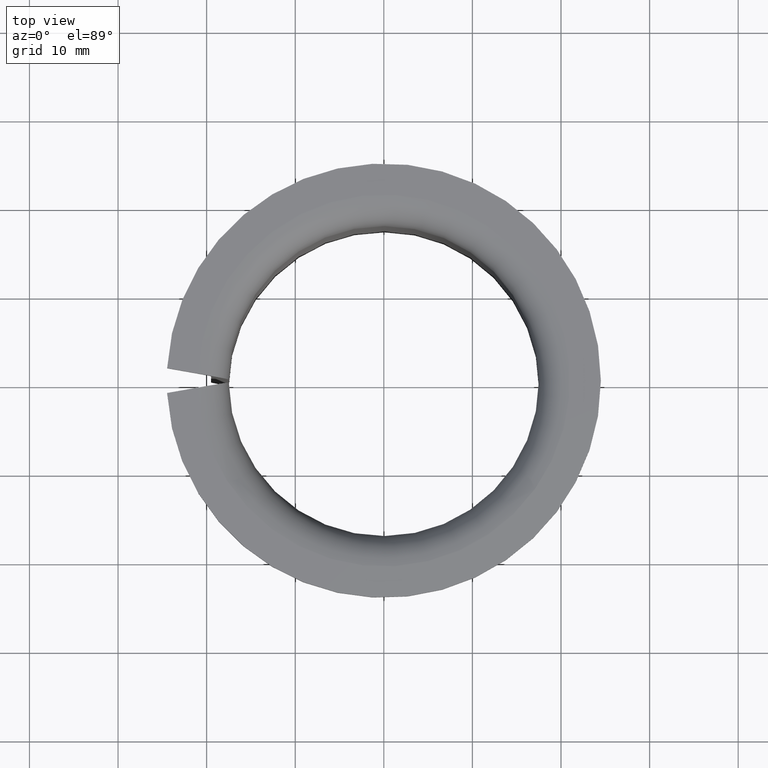
[diagram: clean part render]
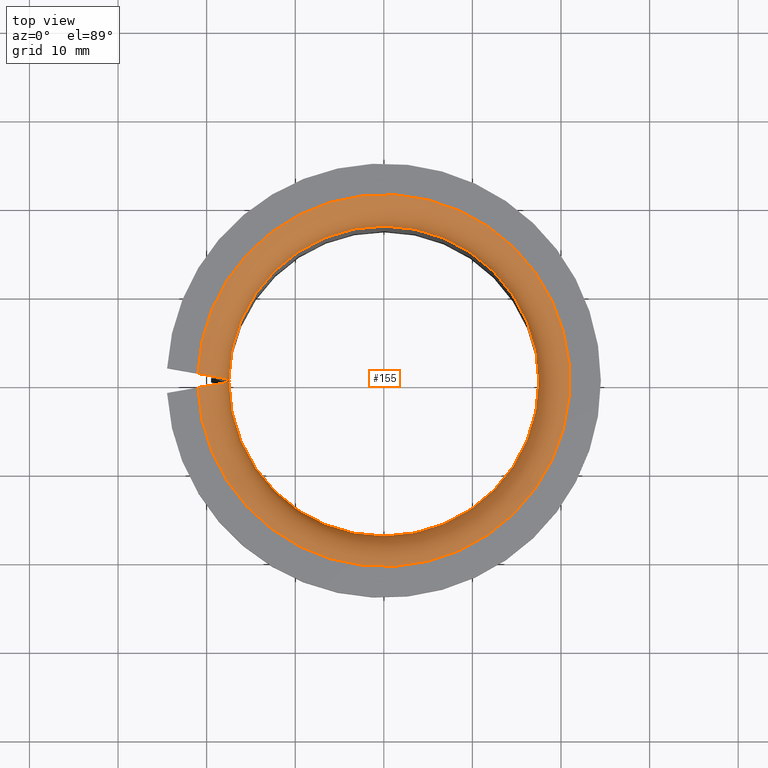
[diagram: same view with one face highlighted and labeled with its STEP entity id]
A machine part, top view. The second image highlights one B-rep face of the part: STEP entity #155.
In plain terms, the highlighted toroidal blend (fillet) surface has major radius 21 mm and minor (blend) radius 3.5 mm.
Its self-contained STEP definition (entity closure, byte-faithful):
#155=ADVANCED_FACE('',(#171),#172,.T.);
#171=FACE_OUTER_BOUND('',#196,.T.);
#172=TOROIDAL_SURFACE('',#197,0.021,0.0035);
#196=EDGE_LOOP('',(#236,#237,#238,#239));
#197=AXIS2_PLACEMENT_3D('',#240,#241,#242);
#236=ORIENTED_EDGE('',*,*,#325,.T.);
#237=ORIENTED_EDGE('',*,*,#326,.T.);
#238=ORIENTED_EDGE('',*,*,#327,.F.);
#239=ORIENTED_EDGE('',*,*,#312,.F.);
#240=CARTESIAN_POINT('',(0.0,3.46944695195362E-018,0.0415));
#241=DIRECTION('',(0.0,-6.12323399573677E-017,-1.0));
#242=DIRECTION('',(0.0,1.0,-6.12323399573677E-017));
#312=EDGE_CURVE('',#342,#343,#344,.T.);
#325=EDGE_CURVE('',#342,#367,#368,.T.);
#326=EDGE_CURVE('',#367,#369,#370,.T.);
#327=EDGE_CURVE('',#343,#369,#371,.T.);
#342=VERTEX_POINT('',#392);
#343=VERTEX_POINT('',#393);
#344=B_SPLINE_CURVE_WITH_KNOTS('',3,(#394,#395,#396,#397,#398,#399,#400,#401,#402,#403,#404,#405,#406,#407,#408,#409,#410,#411),.UNSPECIFIED.,.F.,.F.,(4,2,2,2,2,2,2,2,4),(1.97144213445343E-007,0.000687440077086563,0.00137468300995968,0.0020619259428328,0.00274916887570591,0.00343641180857903,0.00412365474145215,0.00481089767432527,0.00549814060719838),.UNSPECIFIED.);
#367=VERTEX_POINT('',#462);
#368=CIRCLE('',#463,0.0175);
#369=VERTEX_POINT('',#464);
#370=B_SPLINE_CURVE_WITH_KNOTS('',3,(#465,#466,#467,#468,#469,#470,#471,#472,#473,#474,#475,#476,#477,#478,#479,#480,#481,#482),.UNSPECIFIED.,.F.,.F.,(4,2,2,2,2,2,2,2,4),(1.97144213445343E-007,0.000687440077086563,0.00137468300995968,0.0020619259428328,0.00274916887570591,0.00343641180857903,0.00412365474145215,0.00481089767432527,0.00549814060719838),.UNSPECIFIED.);
#371=CIRCLE('',#483,0.021);
#392=CARTESIAN_POINT('',(0.0174991132321836,-0.00017617061961681,0.0415));
#393=CARTESIAN_POINT('',(0.0209851033973357,-0.000790844740217479,0.045));
#394=CARTESIAN_POINT('',(0.0174991132321836,-0.00017617061961681,0.0415));
#395=CARTESIAN_POINT('',(0.0174991132321836,-0.00017617061961681,0.0417323982433262));
#396=CARTESIAN_POINT('',(0.0175219915246278,-0.000180204679847264,0.0419608286907469));
#397=CARTESIAN_POINT('',(0.0176115516317167,-0.000195996543122176,0.0424100927146044));
#398=CARTESIAN_POINT('',(0.0176793702412228,-0.000207954793772221,0.0426333091566987));
#399=CARTESIAN_POINT('',(0.0178558280399616,-0.000239069064646299,0.0430579143322747));
#400=CARTESIAN_POINT('',(0.0179637108656093,-0.000258091717563064,0.0432591604718311));
#401=CARTESIAN_POINT('',(0.0182183242230214,-0.000302986922123581,0.0436397987129509));
#402=CARTESIAN_POINT('',(0.0183660376656832,-0.000329032787478187,0.0438194058246123));
#403=CARTESIAN_POINT('',(0.0186881199836871,-0.000385824590151397,0.0441411182028783));
#404=CARTESIAN_POINT('',(0.0188637408973689,-0.000416791295610176,0.0442854588727117));
#405=CARTESIAN_POINT('',(0.0192448446075499,-0.000483990162163181,0.0445403135456875));
#406=CARTESIAN_POINT('',(0.0194463331129644,-0.00051951802197039,0.0446478702901084));
#407=CARTESIAN_POINT('',(0.0198640024898423,-0.000593164402129645,0.0448212989317011));
#408=CARTESIAN_POINT('',(0.0200828561623802,-0.000631754209425211,0.0448881397067106));
#409=CARTESIAN_POINT('',(0.0205302421854552,-0.000710640436085193,0.0449775381628516));
#410=CARTESIAN_POINT('',(0.0207564185715369,-0.000750521435350542,0.045));
#411=CARTESIAN_POINT('',(0.0209851033973357,-0.000790844740217481,0.045));
#462=CARTESIAN_POINT('',(0.0174991132321836,0.000176170619616816,0.0415));
#463=AXIS2_PLACEMENT_3D('',#538,#539,#540);
#464=CARTESIAN_POINT('',(0.0209851033973357,0.000790844740217487,0.045));
#465=CARTESIAN_POINT('',(0.0174991132321836,0.000176170619616817,0.0415));
#466=CARTESIAN_POINT('',(0.0174991132321836,0.000176170619616817,0.0417323982433262));
#467=CARTESIAN_POINT('',(0.0175219915246278,0.00018020467984727,0.0419608286907469));
#468=CARTESIAN_POINT('',(0.0176115516317167,0.000195996543122183,0.0424100927146044));
#469=CARTESIAN_POINT('',(0.0176793702412228,0.000207954793772227,0.0426333091566987));
#470=CARTESIAN_POINT('',(0.0178558280399616,0.000239069064646306,0.0430579143322747));
#471=CARTESIAN_POINT('',(0.0179637108656093,0.00025809171756307,0.0432591604718311));
#472=CARTESIAN_POINT('',(0.0182183242230214,0.000302986922123587,0.0436397987129509));
#473=CARTESIAN_POINT('',(0.0183660376656832,0.000329032787478194,0.0438194058246123));
#474=CARTESIAN_POINT('',(0.0186881199836871,0.000385824590151403,0.0441411182028783));
#475=CARTESIAN_POINT('',(0.0188637408973689,0.000416791295610183,0.0442854588727117));
#476=CARTESIAN_POINT('',(0.0192448446075499,0.000483990162163188,0.0445403135456875));
#477=CARTESIAN_POINT('',(0.0194463331129644,0.000519518021970397,0.0446478702901084));
#478=CARTESIAN_POINT('',(0.0198640024898423,0.000593164402129652,0.0448212989317011));
#479=CARTESIAN_POINT('',(0.0200828561623802,0.000631754209425218,0.0448881397067106));
#480=CARTESIAN_POINT('',(0.0205302421854552,0.0007106404360852,0.0449775381628516));
#481=CARTESIAN_POINT('',(0.0207564185715369,0.000750521435350548,0.045));
#482=CARTESIAN_POINT('',(0.0209851033973357,0.000790844740217488,0.045));
#483=AXIS2_PLACEMENT_3D('',#541,#542,#543);
#538=CARTESIAN_POINT('',(0.0,3.46944695195362E-018,0.0415));
#539=DIRECTION('',(0.0,-6.12323399573677E-017,-1.0));
#540=DIRECTION('',(0.0,1.0,-6.12323399573677E-017));
#541=CARTESIAN_POINT('',(0.0,3.46944695195362E-018,0.045));
#542=DIRECTION('',(0.0,-6.12323399573677E-017,-1.0));
#543=DIRECTION('',(0.0,1.0,-6.12323399573677E-017));